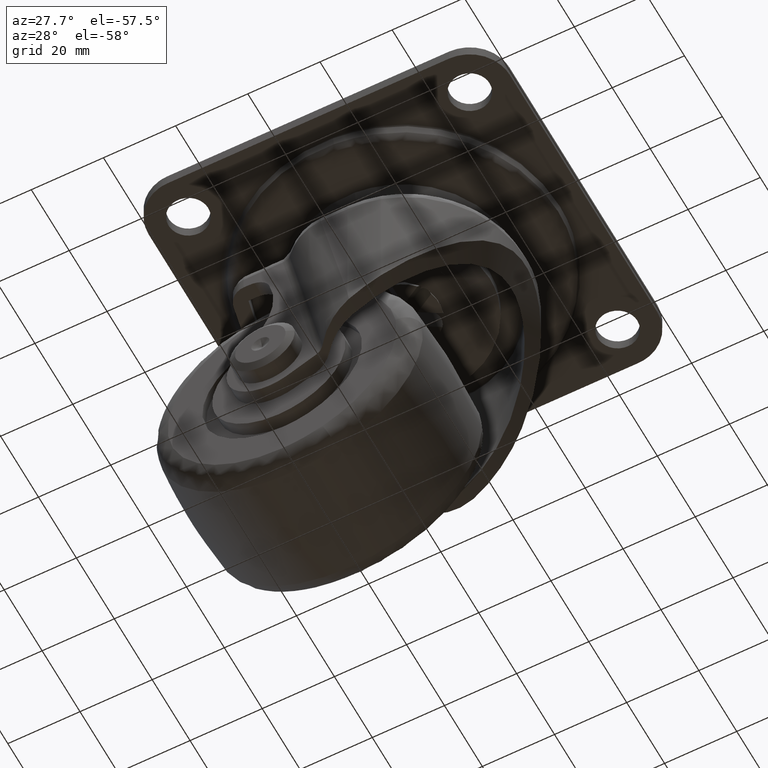
[diagram: clean part render]
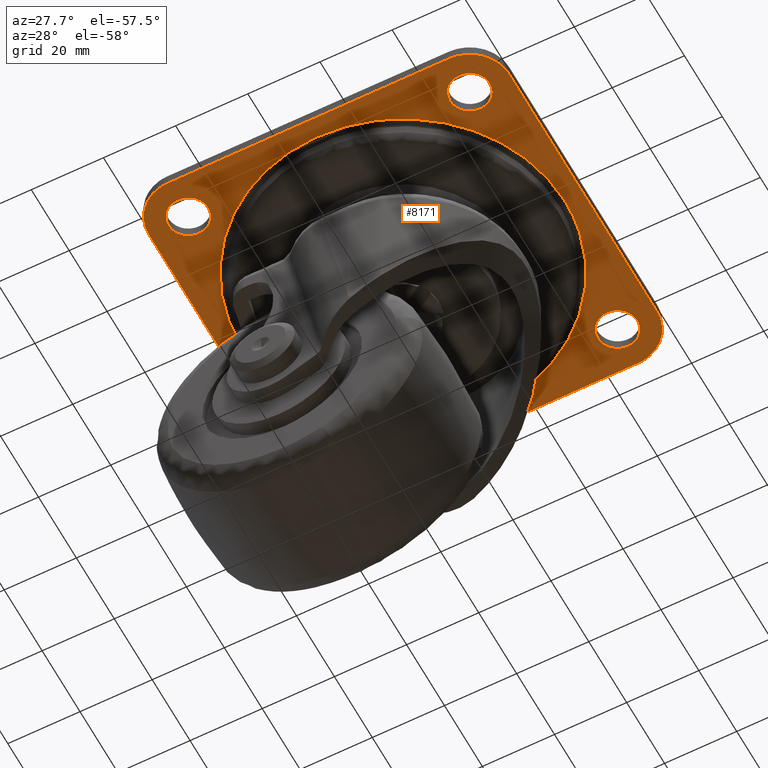
[diagram: same view with one face highlighted and labeled with its STEP entity id]
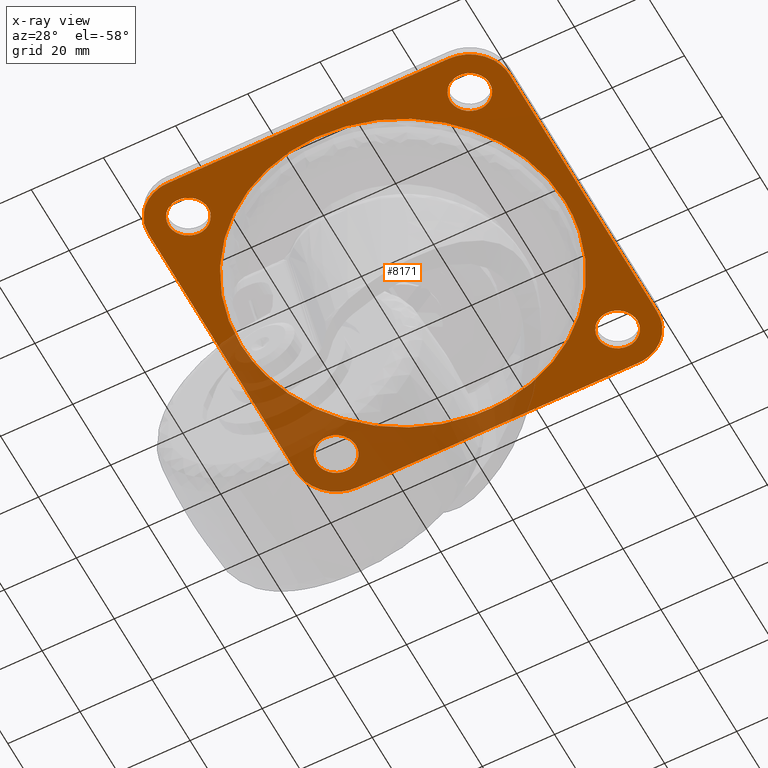
[diagram: x-ray of the same camera — body ghosted, the highlighted face saturated]
A machine part, auxiliary view. The second image highlights one B-rep face of the part: STEP entity #8171.
The next image is the same camera in x-ray: the body ghosted, the highlighted face saturated — about 27% of this face is hidden behind the body in this view.
In plain terms, the highlighted face is a freeform B-spline surface patch.
Its self-contained STEP definition (entity closure, byte-faithful):
#6034=CARTESIAN_POINT('',(-38.664233032356691,44.489741391307938,-3.200000000000000));
#6035=VERTEX_POINT('',#6034);
#6041=CARTESIAN_POINT('',(-33.500000000000000,39.0,-3.200000000000000));
#6042=VERTEX_POINT('',#6041);
#6043=CARTESIAN_POINT('',(-33.500000000000000,39.0,-3.200000000000000));
#6044=CARTESIAN_POINT('',(-33.500000000000000,44.173883367600588,-3.200000000000000));
#6045=CARTESIAN_POINT('',(-38.664233032356691,44.489741391307938,-3.200000000000000));
#6053=(BOUNDED_CURVE()B_SPLINE_CURVE(2,(#6043,#6044,#6045),.UNSPECIFIED.,.F.,.U.)B_SPLINE_CURVE_WITH_KNOTS((3,3),(0.500000000000000,0.739332962229295),.UNSPECIFIED.)CURVE()GEOMETRIC_REPRESENTATION_ITEM()RATIONAL_B_SPLINE_CURVE((1.0,0.719603993298013,0.976072041646040))REPRESENTATION_ITEM(''));
#6054=EDGE_CURVE('',#6042,#6035,#6053,.T.);
#6056=CARTESIAN_POINT('',(-39.649179250865487,33.538446530504089,-3.200000000000000));
#6057=VERTEX_POINT('',#6056);
#6058=CARTESIAN_POINT('',(-39.649179250865494,33.538446530504096,-3.200000000000000));
#6059=CARTESIAN_POINT('',(-39.325728090429756,33.500000000000000,-3.200000000000001));
#6060=CARTESIAN_POINT('',(-39.0,33.500000000000000,-3.200000000000000));
#6061=CARTESIAN_POINT('',(-33.500000000000007,33.500000000000007,-3.200000000000000));
#6062=CARTESIAN_POINT('',(-33.500000000000000,39.0,-3.200000000000000));
#6070=(BOUNDED_CURVE()B_SPLINE_CURVE(2,(#6058,#6059,#6060,#6061,#6062),.UNSPECIFIED.,.F.,.U.)B_SPLINE_CURVE_WITH_KNOTS((3,2,3),(0.229562753243201,0.250000000000000,0.500000000000000),.UNSPECIFIED.)CURVE()GEOMETRIC_REPRESENTATION_ITEM()RATIONAL_B_SPLINE_CURVE((0.956027302466078,0.976056276054866,1.0,0.707106781186548,1.0))REPRESENTATION_ITEM(''));
#6071=EDGE_CURVE('',#6057,#6042,#6070,.T.);
#6119=CARTESIAN_POINT('',(-44.500000000000000,39.0,-3.200000000000000));
#6120=VERTEX_POINT('',#6119);
#6121=CARTESIAN_POINT('',(-44.500000000000000,39.0,-3.200000000000000));
#6122=CARTESIAN_POINT('',(-44.499999999999993,34.115031964951029,-3.200000000000001));
#6123=CARTESIAN_POINT('',(-39.649179250865487,33.538446530504089,-3.200000000000000));
#6131=(BOUNDED_CURVE()B_SPLINE_CURVE(2,(#6121,#6122,#6123),.UNSPECIFIED.,.F.,.U.)B_SPLINE_CURVE_WITH_KNOTS((3,3),(0.0,0.229562753243201),.UNSPECIFIED.)CURVE()GEOMETRIC_REPRESENTATION_ITEM()RATIONAL_B_SPLINE_CURVE((1.0,0.731050505131682,0.956027302466078))REPRESENTATION_ITEM(''));
#6132=EDGE_CURVE('',#6120,#6057,#6131,.T.);
#6134=CARTESIAN_POINT('',(-38.664233032356691,44.489741391307938,-3.200000000000000));
#6135=CARTESIAN_POINT('',(-38.831959801655600,44.499999999999993,-3.200000000000001));
#6136=CARTESIAN_POINT('',(-39.0,44.500000000000000,-3.200000000000000));
#6137=CARTESIAN_POINT('',(-44.500000000000007,44.500000000000007,-3.200000000000000));
#6138=CARTESIAN_POINT('',(-44.500000000000000,39.0,-3.200000000000000));
#6146=(BOUNDED_CURVE()B_SPLINE_CURVE(2,(#6134,#6135,#6136,#6137,#6138),.UNSPECIFIED.,.F.,.U.)B_SPLINE_CURVE_WITH_KNOTS((3,2,3),(0.739332962229296,0.750000000000000,1.0),.UNSPECIFIED.)CURVE()GEOMETRIC_REPRESENTATION_ITEM()RATIONAL_B_SPLINE_CURVE((0.976072041646042,0.987502787888535,1.0,0.707106781186548,1.0))REPRESENTATION_ITEM(''));
#6147=EDGE_CURVE('',#6035,#6120,#6146,.T.);
#6224=CARTESIAN_POINT('',(39.335766967643309,44.489741391307938,-3.200000000000000));
#6225=VERTEX_POINT('',#6224);
#6231=CARTESIAN_POINT('',(44.500000000000000,39.0,-3.200000000000000));
#6232=VERTEX_POINT('',#6231);
#6233=CARTESIAN_POINT('',(44.500000000000000,39.0,-3.200000000000000));
#6234=CARTESIAN_POINT('',(44.500000000000007,44.173883367600588,-3.200000000000000));
#6235=CARTESIAN_POINT('',(39.335766967643316,44.489741391307938,-3.200000000000000));
#6243=(BOUNDED_CURVE()B_SPLINE_CURVE(2,(#6233,#6234,#6235),.UNSPECIFIED.,.F.,.U.)B_SPLINE_CURVE_WITH_KNOTS((3,3),(0.500000000000000,0.739332962229295),.UNSPECIFIED.)CURVE()GEOMETRIC_REPRESENTATION_ITEM()RATIONAL_B_SPLINE_CURVE((1.0,0.719603993298013,0.976072041646040))REPRESENTATION_ITEM(''));
#6244=EDGE_CURVE('',#6232,#6225,#6243,.T.);
#6246=CARTESIAN_POINT('',(38.350820749134499,33.538446530504089,-3.200000000000000));
#6247=VERTEX_POINT('',#6246);
#6248=CARTESIAN_POINT('',(38.350820749134499,33.538446530504089,-3.200000000000000));
#6249=CARTESIAN_POINT('',(38.674271909570237,33.500000000000000,-3.200000000000000));
#6250=CARTESIAN_POINT('',(39.0,33.500000000000000,-3.200000000000000));
#6251=CARTESIAN_POINT('',(44.500000000000007,33.500000000000007,-3.200000000000000));
#6252=CARTESIAN_POINT('',(44.500000000000000,39.0,-3.200000000000000));
#6260=(BOUNDED_CURVE()B_SPLINE_CURVE(2,(#6248,#6249,#6250,#6251,#6252),.UNSPECIFIED.,.F.,.U.)B_SPLINE_CURVE_WITH_KNOTS((3,2,3),(0.229562753243201,0.250000000000000,0.500000000000000),.UNSPECIFIED.)CURVE()GEOMETRIC_REPRESENTATION_ITEM()RATIONAL_B_SPLINE_CURVE((0.956027302466077,0.976056276054865,1.0,0.707106781186548,1.0))REPRESENTATION_ITEM(''));
#6261=EDGE_CURVE('',#6247,#6232,#6260,.T.);
#6309=CARTESIAN_POINT('',(33.500000000000000,39.0,-3.200000000000000));
#6310=VERTEX_POINT('',#6309);
#6311=CARTESIAN_POINT('',(33.500000000000000,39.0,-3.200000000000000));
#6312=CARTESIAN_POINT('',(33.500000000000007,34.115031964951037,-3.199999999999999));
#6313=CARTESIAN_POINT('',(38.350820749134499,33.538446530504089,-3.200000000000001));
#6321=(BOUNDED_CURVE()B_SPLINE_CURVE(2,(#6311,#6312,#6313),.UNSPECIFIED.,.F.,.U.)B_SPLINE_CURVE_WITH_KNOTS((3,3),(0.0,0.229562753243201),.UNSPECIFIED.)CURVE()GEOMETRIC_REPRESENTATION_ITEM()RATIONAL_B_SPLINE_CURVE((1.0,0.731050505131683,0.956027302466077))REPRESENTATION_ITEM(''));
#6322=EDGE_CURVE('',#6310,#6247,#6321,.T.);
#6324=CARTESIAN_POINT('',(39.335766967643309,44.489741391307938,-3.200000000000001));
#6325=CARTESIAN_POINT('',(39.168040198344400,44.500000000000000,-3.200000000000000));
#6326=CARTESIAN_POINT('',(39.0,44.500000000000000,-3.200000000000000));
#6327=CARTESIAN_POINT('',(33.500000000000007,44.500000000000007,-3.200000000000000));
#6328=CARTESIAN_POINT('',(33.500000000000000,39.0,-3.200000000000000));
#6336=(BOUNDED_CURVE()B_SPLINE_CURVE(2,(#6324,#6325,#6326,#6327,#6328),.UNSPECIFIED.,.F.,.U.)B_SPLINE_CURVE_WITH_KNOTS((3,2,3),(0.739332962229296,0.750000000000000,1.0),.UNSPECIFIED.)CURVE()GEOMETRIC_REPRESENTATION_ITEM()RATIONAL_B_SPLINE_CURVE((0.976072041646042,0.987502787888535,1.0,0.707106781186548,1.0))REPRESENTATION_ITEM(''));
#6337=EDGE_CURVE('',#6225,#6310,#6336,.T.);
#6414=CARTESIAN_POINT('',(39.335766967643309,-33.510260508692113,-3.200000000000000));
#6415=VERTEX_POINT('',#6414);
#6421=CARTESIAN_POINT('',(44.500000000000000,-39.000001900000044,-3.200000000000000));
#6422=VERTEX_POINT('',#6421);
#6423=CARTESIAN_POINT('',(44.500000000000000,-39.000001900000044,-3.200000000000000));
#6424=CARTESIAN_POINT('',(44.500000000000007,-33.826118532399448,-3.200000000000000));
#6425=CARTESIAN_POINT('',(39.335766967643316,-33.510260508692113,-3.200000000000000));
#6433=(BOUNDED_CURVE()B_SPLINE_CURVE(2,(#6423,#6424,#6425),.UNSPECIFIED.,.F.,.U.)B_SPLINE_CURVE_WITH_KNOTS((3,3),(0.500000000000000,0.739332962229295),.UNSPECIFIED.)CURVE()GEOMETRIC_REPRESENTATION_ITEM()RATIONAL_B_SPLINE_CURVE((1.0,0.719603993298013,0.976072041646040))REPRESENTATION_ITEM(''));
#6434=EDGE_CURVE('',#6422,#6415,#6433,.T.);
#6436=CARTESIAN_POINT('',(38.350820749134499,-44.461555369495947,-3.200000000000000));
#6437=VERTEX_POINT('',#6436);
#6438=CARTESIAN_POINT('',(38.350820749134499,-44.461555369495954,-3.200000000000000));
#6439=CARTESIAN_POINT('',(38.674271909570230,-44.500001900000036,-3.200000000000001));
#6440=CARTESIAN_POINT('',(39.0,-44.500001900000044,-3.200000000000000));
#6441=CARTESIAN_POINT('',(44.500000000000007,-44.500001900000036,-3.200000000000000));
#6442=CARTESIAN_POINT('',(44.500000000000000,-39.000001900000044,-3.200000000000000));
#6450=(BOUNDED_CURVE()B_SPLINE_CURVE(2,(#6438,#6439,#6440,#6441,#6442),.UNSPECIFIED.,.F.,.U.)B_SPLINE_CURVE_WITH_KNOTS((3,2,3),(0.229562753243201,0.250000000000000,0.500000000000000),.UNSPECIFIED.)CURVE()GEOMETRIC_REPRESENTATION_ITEM()RATIONAL_B_SPLINE_CURVE((0.956027302466077,0.976056276054865,1.0,0.707106781186548,1.0))REPRESENTATION_ITEM(''));
#6451=EDGE_CURVE('',#6437,#6422,#6450,.T.);
#6499=CARTESIAN_POINT('',(33.500000000000000,-39.000001900000044,-3.200000000000000));
#6500=VERTEX_POINT('',#6499);
#6501=CARTESIAN_POINT('',(33.500000000000000,-39.000001900000044,-3.200000000000000));
#6502=CARTESIAN_POINT('',(33.499999999999993,-43.884969935049014,-3.200000000000000));
#6503=CARTESIAN_POINT('',(38.350820749134499,-44.461555369495954,-3.200000000000000));
#6511=(BOUNDED_CURVE()B_SPLINE_CURVE(2,(#6501,#6502,#6503),.UNSPECIFIED.,.F.,.U.)B_SPLINE_CURVE_WITH_KNOTS((3,3),(0.0,0.229562753243201),.UNSPECIFIED.)CURVE()GEOMETRIC_REPRESENTATION_ITEM()RATIONAL_B_SPLINE_CURVE((1.0,0.731050505131683,0.956027302466077))REPRESENTATION_ITEM(''));
#6512=EDGE_CURVE('',#6500,#6437,#6511,.T.);
#6514=CARTESIAN_POINT('',(39.335766967643309,-33.510260508692113,-3.200000000000000));
#6515=CARTESIAN_POINT('',(39.168040198344407,-33.500001900000065,-3.200000000000001));
#6516=CARTESIAN_POINT('',(39.0,-33.500001900000051,-3.200000000000000));
#6517=CARTESIAN_POINT('',(33.500000000000007,-33.500001900000065,-3.200000000000000));
#6518=CARTESIAN_POINT('',(33.500000000000000,-39.000001900000044,-3.200000000000000));
#6526=(BOUNDED_CURVE()B_SPLINE_CURVE(2,(#6514,#6515,#6516,#6517,#6518),.UNSPECIFIED.,.F.,.U.)B_SPLINE_CURVE_WITH_KNOTS((3,2,3),(0.739332962229296,0.750000000000000,1.0),.UNSPECIFIED.)CURVE()GEOMETRIC_REPRESENTATION_ITEM()RATIONAL_B_SPLINE_CURVE((0.976072041646042,0.987502787888535,1.0,0.707106781186548,1.0))REPRESENTATION_ITEM(''));
#6527=EDGE_CURVE('',#6415,#6500,#6526,.T.);
#6604=CARTESIAN_POINT('',(-38.664233032356691,-33.510260508692113,-3.200000000000000));
#6605=VERTEX_POINT('',#6604);
#6611=CARTESIAN_POINT('',(-33.500000000000000,-39.000001900000044,-3.200000000000000));
#6612=VERTEX_POINT('',#6611);
#6613=CARTESIAN_POINT('',(-33.500000000000000,-39.000001900000044,-3.200000000000000));
#6614=CARTESIAN_POINT('',(-33.500000000000000,-33.826118532399448,-3.200000000000000));
#6615=CARTESIAN_POINT('',(-38.664233032356691,-33.510260508692113,-3.200000000000000));
#6623=(BOUNDED_CURVE()B_SPLINE_CURVE(2,(#6613,#6614,#6615),.UNSPECIFIED.,.F.,.U.)B_SPLINE_CURVE_WITH_KNOTS((3,3),(0.500000000000000,0.739332962229295),.UNSPECIFIED.)CURVE()GEOMETRIC_REPRESENTATION_ITEM()RATIONAL_B_SPLINE_CURVE((1.0,0.719603993298013,0.976072041646040))REPRESENTATION_ITEM(''));
#6624=EDGE_CURVE('',#6612,#6605,#6623,.T.);
#6626=CARTESIAN_POINT('',(-39.649179250865487,-44.461555369495947,-3.200000000000000));
#6627=VERTEX_POINT('',#6626);
#6628=CARTESIAN_POINT('',(-39.649179250865487,-44.461555369495954,-3.200000000000000));
#6629=CARTESIAN_POINT('',(-39.325728090429763,-44.500001900000051,-3.200000000000000));
#6630=CARTESIAN_POINT('',(-39.0,-44.500001900000044,-3.200000000000000));
#6631=CARTESIAN_POINT('',(-33.500000000000007,-44.500001900000036,-3.200000000000000));
#6632=CARTESIAN_POINT('',(-33.500000000000000,-39.000001900000044,-3.200000000000000));
#6640=(BOUNDED_CURVE()B_SPLINE_CURVE(2,(#6628,#6629,#6630,#6631,#6632),.UNSPECIFIED.,.F.,.U.)B_SPLINE_CURVE_WITH_KNOTS((3,2,3),(0.229562753243201,0.250000000000000,0.500000000000000),.UNSPECIFIED.)CURVE()GEOMETRIC_REPRESENTATION_ITEM()RATIONAL_B_SPLINE_CURVE((0.956027302466078,0.976056276054866,1.0,0.707106781186548,1.0))REPRESENTATION_ITEM(''));
#6641=EDGE_CURVE('',#6627,#6612,#6640,.T.);
#6689=CARTESIAN_POINT('',(-44.500000000000000,-39.000001900000044,-3.200000000000000));
#6690=VERTEX_POINT('',#6689);
#6691=CARTESIAN_POINT('',(-44.500000000000000,-39.000001900000044,-3.200000000000000));
#6692=CARTESIAN_POINT('',(-44.499999999999993,-43.884969935049021,-3.200000000000000));
#6693=CARTESIAN_POINT('',(-39.649179250865487,-44.461555369495954,-3.200000000000001));
#6701=(BOUNDED_CURVE()B_SPLINE_CURVE(2,(#6691,#6692,#6693),.UNSPECIFIED.,.F.,.U.)B_SPLINE_CURVE_WITH_KNOTS((3,3),(0.0,0.229562753243201),.UNSPECIFIED.)CURVE()GEOMETRIC_REPRESENTATION_ITEM()RATIONAL_B_SPLINE_CURVE((1.0,0.731050505131682,0.956027302466078))REPRESENTATION_ITEM(''));
#6702=EDGE_CURVE('',#6690,#6627,#6701,.T.);
#6704=CARTESIAN_POINT('',(-38.664233032356691,-33.510260508692113,-3.200000000000000));
#6705=CARTESIAN_POINT('',(-38.831959801655600,-33.500001900000065,-3.200000000000001));
#6706=CARTESIAN_POINT('',(-39.0,-33.500001900000051,-3.200000000000000));
#6707=CARTESIAN_POINT('',(-44.500000000000007,-33.500001900000065,-3.200000000000000));
#6708=CARTESIAN_POINT('',(-44.500000000000000,-39.000001900000044,-3.200000000000000));
#6716=(BOUNDED_CURVE()B_SPLINE_CURVE(2,(#6704,#6705,#6706,#6707,#6708),.UNSPECIFIED.,.F.,.U.)B_SPLINE_CURVE_WITH_KNOTS((3,2,3),(0.739332962229296,0.750000000000000,1.0),.UNSPECIFIED.)CURVE()GEOMETRIC_REPRESENTATION_ITEM()RATIONAL_B_SPLINE_CURVE((0.976072041646042,0.987502787888535,1.0,0.707106781186548,1.0))REPRESENTATION_ITEM(''));
#6717=EDGE_CURVE('',#6605,#6690,#6716,.T.);
#7560=CARTESIAN_POINT('',(5.514138967528766,44.589918148556322,-3.200000000000050));
#7561=VERTEX_POINT('',#7560);
#7575=CARTESIAN_POINT('',(44.929572999999998,0.0,-3.200000000000000));
#7576=VERTEX_POINT('',#7575);
#7577=CARTESIAN_POINT('',(5.514138967528766,44.589918148556322,-3.200000000000050));
#7578=CARTESIAN_POINT('',(44.929572999999998,39.715673267642423,-3.200000000000000));
#7579=CARTESIAN_POINT('',(44.929572999999998,0.0,-3.200000000000000));
#7587=(BOUNDED_CURVE()B_SPLINE_CURVE(2,(#7577,#7578,#7579),.UNSPECIFIED.,.F.,.U.)B_SPLINE_CURVE_WITH_KNOTS((3,3),(0.271236031905833,0.500000000000000),.UNSPECIFIED.)CURVE()GEOMETRIC_REPRESENTATION_ITEM()RATIONAL_B_SPLINE_CURVE((0.954467626945038,0.731986340145445,1.0))REPRESENTATION_ITEM(''));
#7588=EDGE_CURVE('',#7561,#7576,#7587,.T.);
#7590=CARTESIAN_POINT('',(-44.929572999999998,0.0,-3.200000000000000));
#7591=VERTEX_POINT('',#7590);
#7592=CARTESIAN_POINT('',(44.929572999999998,0.0,-3.200000000000000));
#7593=CARTESIAN_POINT('',(44.929572999999998,-44.929572999999998,-3.200000000000000));
#7594=CARTESIAN_POINT('',(0.0,-44.929572999999998,-3.200000000000000));
#7595=CARTESIAN_POINT('',(-44.929572999999998,-44.929572999999998,-3.200000000000000));
#7596=CARTESIAN_POINT('',(-44.929572999999998,0.0,-3.200000000000000));
#7604=(BOUNDED_CURVE()B_SPLINE_CURVE(2,(#7592,#7593,#7594,#7595,#7596),.UNSPECIFIED.,.F.,.U.)B_SPLINE_CURVE_WITH_KNOTS((3,2,3),(0.500000000000000,0.750000000000000,1.0),.UNSPECIFIED.)CURVE()GEOMETRIC_REPRESENTATION_ITEM()RATIONAL_B_SPLINE_CURVE((1.0,0.707106781186547,1.0,0.707106781186547,1.0))REPRESENTATION_ITEM(''));
#7605=EDGE_CURVE('',#7576,#7591,#7604,.T.);
#7607=CARTESIAN_POINT('',(-43.654998867434230,10.625798949974071,-3.200000000000050));
#7608=VERTEX_POINT('',#7607);
#7609=CARTESIAN_POINT('',(-44.929572999999998,0.0,-3.200000000000000));
#7610=CARTESIAN_POINT('',(-44.929573000000005,5.389342631338373,-3.200000000000000));
#7611=CARTESIAN_POINT('',(-43.654998867434230,10.625798949974069,-3.200000000000050));
#7619=(BOUNDED_CURVE()B_SPLINE_CURVE(2,(#7609,#7610,#7611),.UNSPECIFIED.,.F.,.U.)B_SPLINE_CURVE_WITH_KNOTS((3,3),(0.0,0.040401677693809),.UNSPECIFIED.)CURVE()GEOMETRIC_REPRESENTATION_ITEM()RATIONAL_B_SPLINE_CURVE((1.0,0.952666490299187,0.920631806222766))REPRESENTATION_ITEM(''));
#7620=EDGE_CURVE('',#7591,#7608,#7619,.T.);
#7661=CARTESIAN_POINT('',(-43.654998867434230,10.625798949974069,-3.200000000000050));
#7662=CARTESIAN_POINT('',(-35.305324935881309,44.929572999999998,-3.200000000000001));
#7663=CARTESIAN_POINT('',(0.0,44.929572999999998,-3.200000000000000));
#7664=CARTESIAN_POINT('',(2.767530357215011,44.929572999999991,-3.200000000000001));
#7665=CARTESIAN_POINT('',(5.514138967528766,44.589918148556329,-3.200000000000050));
#7673=(BOUNDED_CURVE()B_SPLINE_CURVE(2,(#7661,#7662,#7663,#7664,#7665),.UNSPECIFIED.,.F.,.U.)B_SPLINE_CURVE_WITH_KNOTS((3,2,3),(0.040401677693809,0.250000000000000,0.271236031905833),.UNSPECIFIED.)CURVE()GEOMETRIC_REPRESENTATION_ITEM()RATIONAL_B_SPLINE_CURVE((0.920631806222766,0.754440290887361,1.0,0.975120441041102,0.954467626945038))REPRESENTATION_ITEM(''));
#7674=EDGE_CURVE('',#7608,#7561,#7673,.T.);
#7886=CARTESIAN_POINT('',(50.0,-39.000002475958752,-3.200000000000000));
#7887=VERTEX_POINT('',#7886);
#7893=CARTESIAN_POINT('',(50.0,39.0,-3.200000000000000));
#7894=VERTEX_POINT('',#7893);
#7895=CARTESIAN_POINT('',(50.0,-39.000002475958752,-3.200000000000000));
#7896=CARTESIAN_POINT('',(50.0,39.0,-3.200000000000000));
#7897=QUASI_UNIFORM_CURVE('',1,(#7895,#7896),.UNSPECIFIED.,.F.,.U.);
#7898=EDGE_CURVE('',#7887,#7894,#7897,.T.);
#7923=CARTESIAN_POINT('',(39.0,-50.000001900000001,-3.200000000000000));
#7924=VERTEX_POINT('',#7923);
#7930=CARTESIAN_POINT('',(39.0,-50.000001900000051,-3.200000000000000));
#7931=CARTESIAN_POINT('',(49.999999424041320,-50.000001900000051,-3.200000000000000));
#7932=CARTESIAN_POINT('',(49.999999999999993,-39.000002475958752,-3.200000000000000));
#7940=(BOUNDED_CURVE()B_SPLINE_CURVE(2,(#7930,#7931,#7932),.UNSPECIFIED.,.F.,.U.)CURVE()GEOMETRIC_REPRESENTATION_ITEM()QUASI_UNIFORM_CURVE()RATIONAL_B_SPLINE_CURVE((1.0,0.707106799698561,1.0))REPRESENTATION_ITEM(''));
#7941=EDGE_CURVE('',#7924,#7887,#7940,.T.);
#7953=CARTESIAN_POINT('',(-38.999998080138049,-50.000001899999887,-3.200000000000000));
#7954=VERTEX_POINT('',#7953);
#7960=CARTESIAN_POINT('',(-38.999998080138049,-50.000001899999887,-3.200000000000000));
#7961=CARTESIAN_POINT('',(39.0,-50.000001900000001,-3.200000000000000));
#7962=QUASI_UNIFORM_CURVE('',1,(#7960,#7961),.UNSPECIFIED.,.F.,.U.);
#7963=EDGE_CURVE('',#7954,#7924,#7962,.T.);
#7984=CARTESIAN_POINT('',(-50.000001000000204,-39.000001900000044,-3.200000000000000));
#7985=VERTEX_POINT('',#7984);
#7991=CARTESIAN_POINT('',(-50.000001000000204,-39.000001900000044,-3.200000000000000));
#7992=CARTESIAN_POINT('',(-50.000000792893388,-43.556351648418641,-3.200000000000000));
#7993=CARTESIAN_POINT('',(-46.778174414278404,-46.778177171825753,-3.200000000000000));
#7994=CARTESIAN_POINT('',(-43.556348035663397,-50.000002695232823,-3.200000000000000));
#7995=CARTESIAN_POINT('',(-38.999998080138049,-50.000001899999887,-3.200000000000000));
#8003=(BOUNDED_CURVE()B_SPLINE_CURVE(2,(#7991,#7992,#7993,#7994,#7995),.UNSPECIFIED.,.F.,.U.)B_SPLINE_CURVE_WITH_KNOTS((3,2,3),(0.0,0.500000000000000,1.0),.UNSPECIFIED.)CURVE()GEOMETRIC_REPRESENTATION_ITEM()RATIONAL_B_SPLINE_CURVE((1.0,0.923879515813573,1.0,0.923879515813573,1.0))REPRESENTATION_ITEM(''));
#8004=EDGE_CURVE('',#7985,#7954,#8003,.T.);
#8016=CARTESIAN_POINT('',(-50.0,39.0,-3.200000000000000));
#8017=VERTEX_POINT('',#8016);
#8023=CARTESIAN_POINT('',(-50.0,39.0,-3.200000000000000));
#8024=CARTESIAN_POINT('',(-50.000001000000204,-39.000001900000044,-3.200000000000000));
#8025=QUASI_UNIFORM_CURVE('',1,(#8023,#8024),.UNSPECIFIED.,.F.,.U.);
#8026=EDGE_CURVE('',#8017,#7985,#8025,.T.);
#8047=CARTESIAN_POINT('',(-39.0,50.0,-3.200000000000000));
#8048=VERTEX_POINT('',#8047);
#8054=CARTESIAN_POINT('',(-39.0,50.0,-3.200000000000000));
#8055=CARTESIAN_POINT('',(-50.0,50.0,-3.200000000000000));
#8056=CARTESIAN_POINT('',(-50.0,39.0,-3.200000000000000));
#8064=(BOUNDED_CURVE()B_SPLINE_CURVE(2,(#8054,#8055,#8056),.UNSPECIFIED.,.F.,.U.)CURVE()GEOMETRIC_REPRESENTATION_ITEM()QUASI_UNIFORM_CURVE()RATIONAL_B_SPLINE_CURVE((1.0,0.707106781186548,1.0))REPRESENTATION_ITEM(''));
#8065=EDGE_CURVE('',#8048,#8017,#8064,.T.);
#8077=CARTESIAN_POINT('',(39.0,50.0,-3.200000000000000));
#8078=VERTEX_POINT('',#8077);
#8084=CARTESIAN_POINT('',(39.0,50.0,-3.200000000000000));
#8085=CARTESIAN_POINT('',(-39.0,50.0,-3.200000000000000));
#8086=QUASI_UNIFORM_CURVE('',1,(#8084,#8085),.UNSPECIFIED.,.F.,.U.);
#8087=EDGE_CURVE('',#8078,#8048,#8086,.T.);
#8109=CARTESIAN_POINT('',(50.0,39.0,-3.200000000000000));
#8110=CARTESIAN_POINT('',(50.0,50.0,-3.200000000000000));
#8111=CARTESIAN_POINT('',(39.0,50.0,-3.200000000000000));
#8119=(BOUNDED_CURVE()B_SPLINE_CURVE(2,(#8109,#8110,#8111),.UNSPECIFIED.,.F.,.U.)CURVE()GEOMETRIC_REPRESENTATION_ITEM()QUASI_UNIFORM_CURVE()RATIONAL_B_SPLINE_CURVE((1.0,0.707106781186548,1.0))REPRESENTATION_ITEM(''));
#8120=EDGE_CURVE('',#7894,#8078,#8119,.T.);
#8126=CARTESIAN_POINT('',(-54.994999917402353,54.994999543815346,-3.200000000000000));
#8127=CARTESIAN_POINT('',(54.995002493680857,54.994999543815346,-3.200000000000000));
#8128=CARTESIAN_POINT('',(-54.994999917402353,-54.994996973466897,-3.200000000000000));
#8129=CARTESIAN_POINT('',(54.995002493680857,-54.994996973466897,-3.200000000000000));
#8130=B_SPLINE_SURFACE_WITH_KNOTS('',1,1,((#8126,#8128),(#8127,#8129)),.UNSPECIFIED.,.F.,.F.,.U.,(2,2),(2,2),(0.0,109.990002411083200),(0.0,109.989996517282290),.UNSPECIFIED.);
#8131=ORIENTED_EDGE('',*,*,#8120,.F.);
#8132=ORIENTED_EDGE('',*,*,#7898,.F.);
#8133=ORIENTED_EDGE('',*,*,#7941,.F.);
#8134=ORIENTED_EDGE('',*,*,#7963,.F.);
#8135=ORIENTED_EDGE('',*,*,#8004,.F.);
#8136=ORIENTED_EDGE('',*,*,#8026,.F.);
#8137=ORIENTED_EDGE('',*,*,#8065,.F.);
#8138=ORIENTED_EDGE('',*,*,#8087,.F.);
#8139=EDGE_LOOP('',(#8131,#8132,#8133,#8134,#8135,#8136,#8137,#8138));
#8140=FACE_OUTER_BOUND('',#8139,.T.);
#8141=ORIENTED_EDGE('',*,*,#7605,.F.);
#8142=ORIENTED_EDGE('',*,*,#7588,.F.);
#8143=ORIENTED_EDGE('',*,*,#7674,.F.);
#8144=ORIENTED_EDGE('',*,*,#7620,.F.);
#8145=EDGE_LOOP('',(#8141,#8142,#8143,#8144));
#8146=FACE_BOUND('',#8145,.T.);
#8147=ORIENTED_EDGE('',*,*,#6624,.T.);
#8148=ORIENTED_EDGE('',*,*,#6717,.T.);
#8149=ORIENTED_EDGE('',*,*,#6702,.T.);
#8150=ORIENTED_EDGE('',*,*,#6641,.T.);
#8151=EDGE_LOOP('',(#8147,#8148,#8149,#8150));
#8152=FACE_BOUND('',#8151,.T.);
#8153=ORIENTED_EDGE('',*,*,#6434,.T.);
#8154=ORIENTED_EDGE('',*,*,#6527,.T.);
#8155=ORIENTED_EDGE('',*,*,#6512,.T.);
#8156=ORIENTED_EDGE('',*,*,#6451,.T.);
#8157=EDGE_LOOP('',(#8153,#8154,#8155,#8156));
#8158=FACE_BOUND('',#8157,.T.);
#8159=ORIENTED_EDGE('',*,*,#6244,.T.);
#8160=ORIENTED_EDGE('',*,*,#6337,.T.);
#8161=ORIENTED_EDGE('',*,*,#6322,.T.);
#8162=ORIENTED_EDGE('',*,*,#6261,.T.);
#8163=EDGE_LOOP('',(#8159,#8160,#8161,#8162));
#8164=FACE_BOUND('',#8163,.T.);
#8165=ORIENTED_EDGE('',*,*,#6054,.T.);
#8166=ORIENTED_EDGE('',*,*,#6147,.T.);
#8167=ORIENTED_EDGE('',*,*,#6132,.T.);
#8168=ORIENTED_EDGE('',*,*,#6071,.T.);
#8169=EDGE_LOOP('',(#8165,#8166,#8167,#8168));
#8170=FACE_BOUND('',#8169,.T.);
#8171=ADVANCED_FACE('',(#8140,#8146,#8152,#8158,#8164,#8170),#8130,.T.);